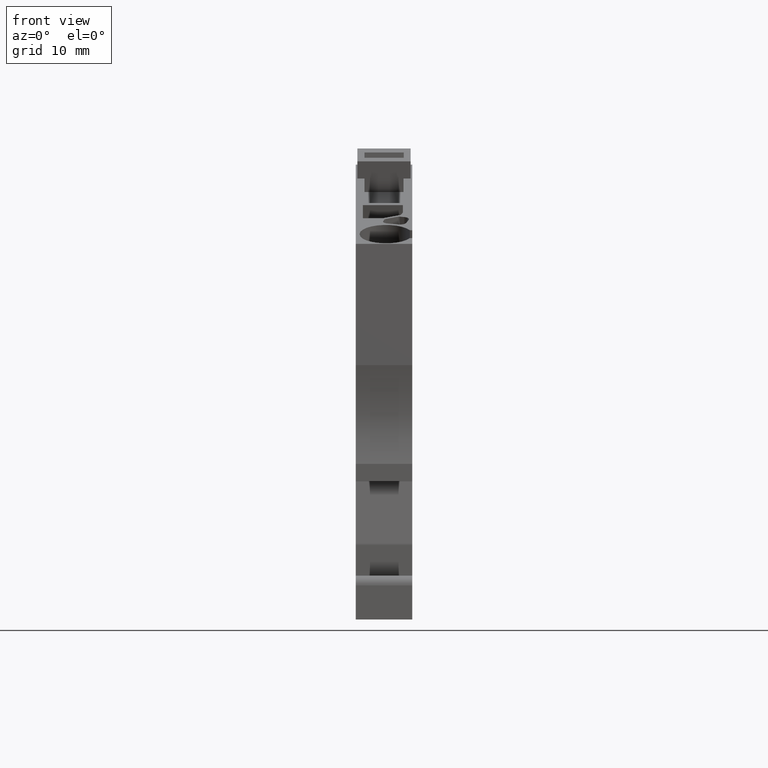
[diagram: clean part render]
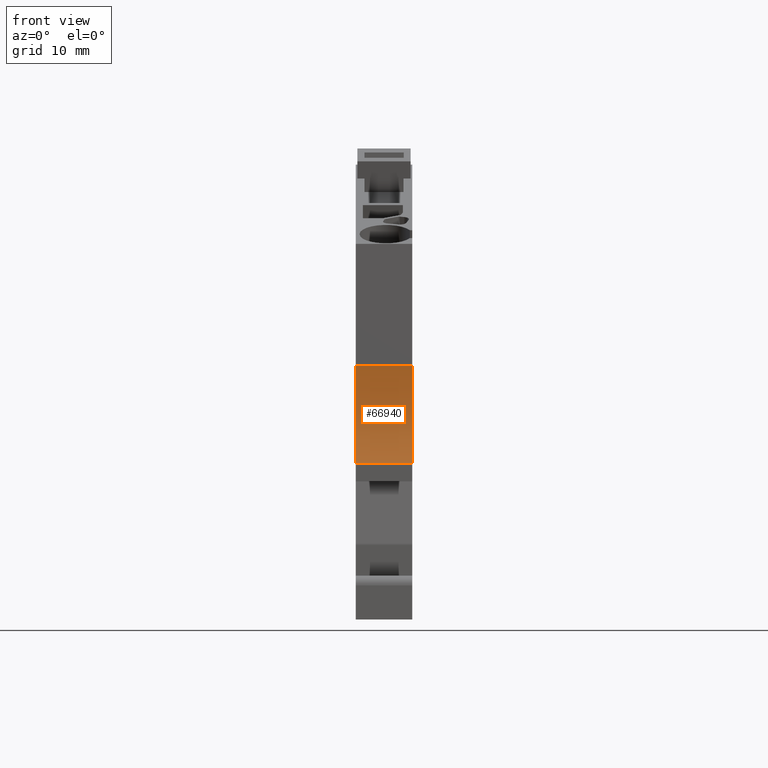
[diagram: same view with one face highlighted and labeled with its STEP entity id]
A machine part, front view. The second image highlights one B-rep face of the part: STEP entity #66940.
In plain terms, the highlighted cylindrical surface (partial cylindrical patch) has radius 15 mm, axis along (1, -0, 0).
Its self-contained STEP definition (entity closure, byte-faithful):
#20070=CARTESIAN_POINT('',(-42.8999999999979,17.1999999999899,0.));
#20080=DIRECTION('',(0.,0.,1.));
#20090=VECTOR('',#20080,1.);
#20100=LINE('',#20070,#20090);
#20110=CARTESIAN_POINT('',(-42.8999999999979,17.1999999999899,
-5.15000000000269));
#20120=VERTEX_POINT('',#20110);
#20130=CARTESIAN_POINT('',(-42.8999999999979,17.1999999999899,
-1.28322855846794E-10));
#20140=VERTEX_POINT('',#20130);
#20150=EDGE_CURVE('',#20120,#20140,#20100,.T.);
#33330=CARTESIAN_POINT('',(-42.9,8.2,-5.15000000000269));
#33340=VERTEX_POINT('',#33330);
#33370=CARTESIAN_POINT('',(-42.9,8.2,0.));
#33380=DIRECTION('',(0.,0.,1.));
#33390=VECTOR('',#33380,1.);
#33400=LINE('',#33370,#33390);
#33410=CARTESIAN_POINT('',(-42.9,8.20000000000002,-1.33543376225938E-10)
);
#33420=VERTEX_POINT('',#33410);
#33430=EDGE_CURVE('',#33340,#33420,#33400,.T.);
#54880=CARTESIAN_POINT('',(-57.2090880212549,12.6999999999983,
-1.29746523553973E-10));
#54890=DIRECTION('',(0.,0.,1.));
#54900=DIRECTION('',(1.,0.,0.));
#54910=AXIS2_PLACEMENT_3D('',#54880,#54890,#54900);
#54920=CIRCLE('',#54910,15.0000000000001);
#54930=EDGE_CURVE('',#33420,#20140,#54920,.T.);
#61260=CARTESIAN_POINT('',(-57.2090880212549,12.6999999999983,
-5.15000000000269));
#61270=DIRECTION('',(0.,0.,1.));
#61280=DIRECTION('',(1.,0.,0.));
#61290=AXIS2_PLACEMENT_3D('',#61260,#61270,#61280);
#61300=CIRCLE('',#61290,15.0000000000001);
#61310=EDGE_CURVE('',#33340,#20120,#61300,.T.);
#66830=CARTESIAN_POINT('',(-57.2090880212549,12.6999999999983,0.));
#66840=DIRECTION('',(0.,0.,1.));
#66850=DIRECTION('',(1.,0.,0.));
#66860=AXIS2_PLACEMENT_3D('',#66830,#66840,#66850);
#66870=CYLINDRICAL_SURFACE('',#66860,15.0000000000001);
#66880=ORIENTED_EDGE('',*,*,#33430,.T.);
#66890=ORIENTED_EDGE('',*,*,#61310,.F.);
#66900=ORIENTED_EDGE('',*,*,#20150,.F.);
#66910=ORIENTED_EDGE('',*,*,#54930,.T.);
#66920=EDGE_LOOP('',(#66910,#66900,#66890,#66880));
#66930=FACE_OUTER_BOUND('',#66920,.T.);
#66940=ADVANCED_FACE('',(#66930),#66870,.F.);